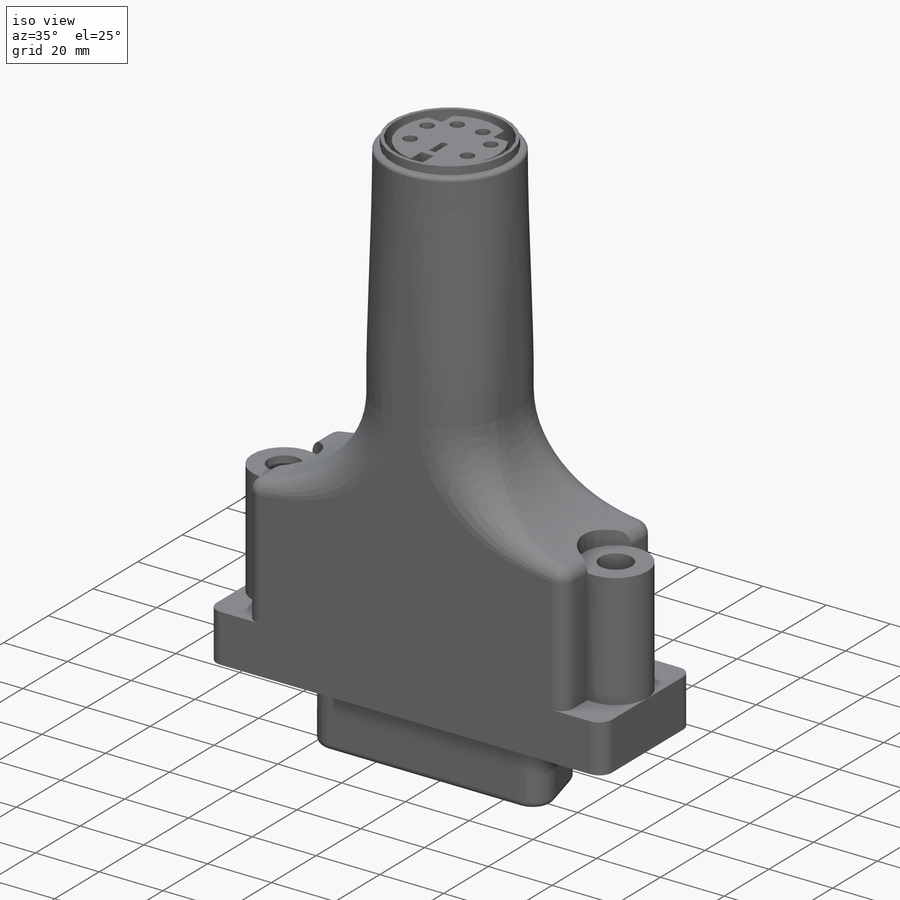
[diagram: iso view]
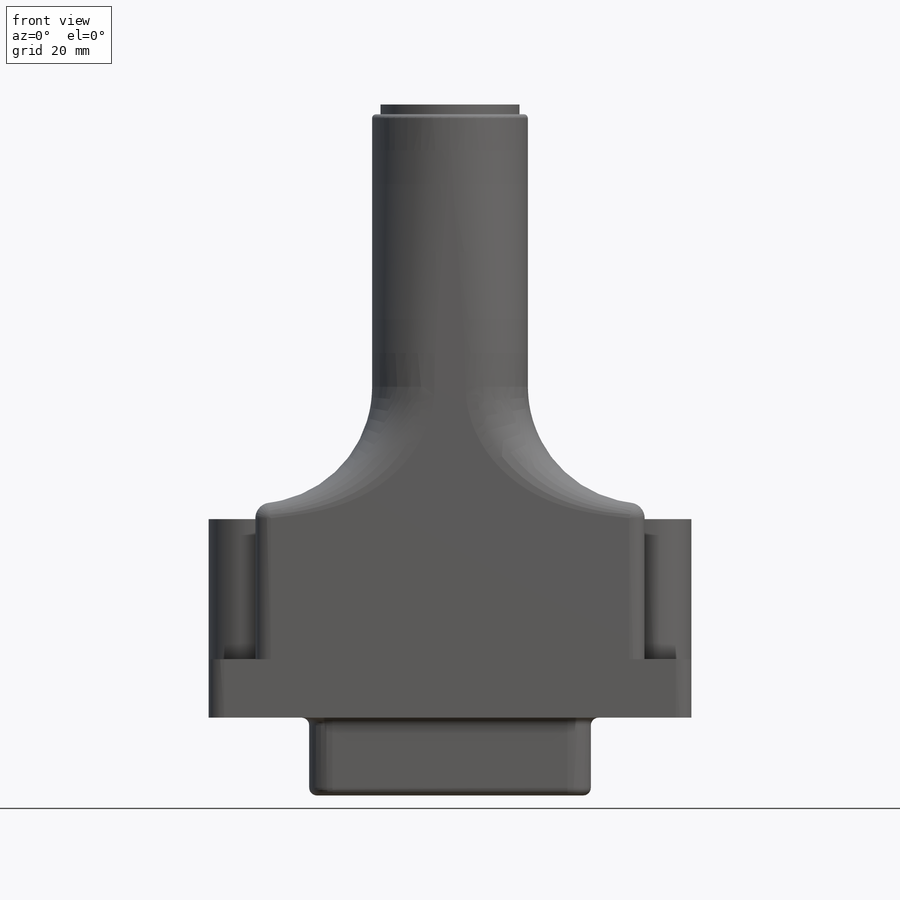
[diagram: front view]
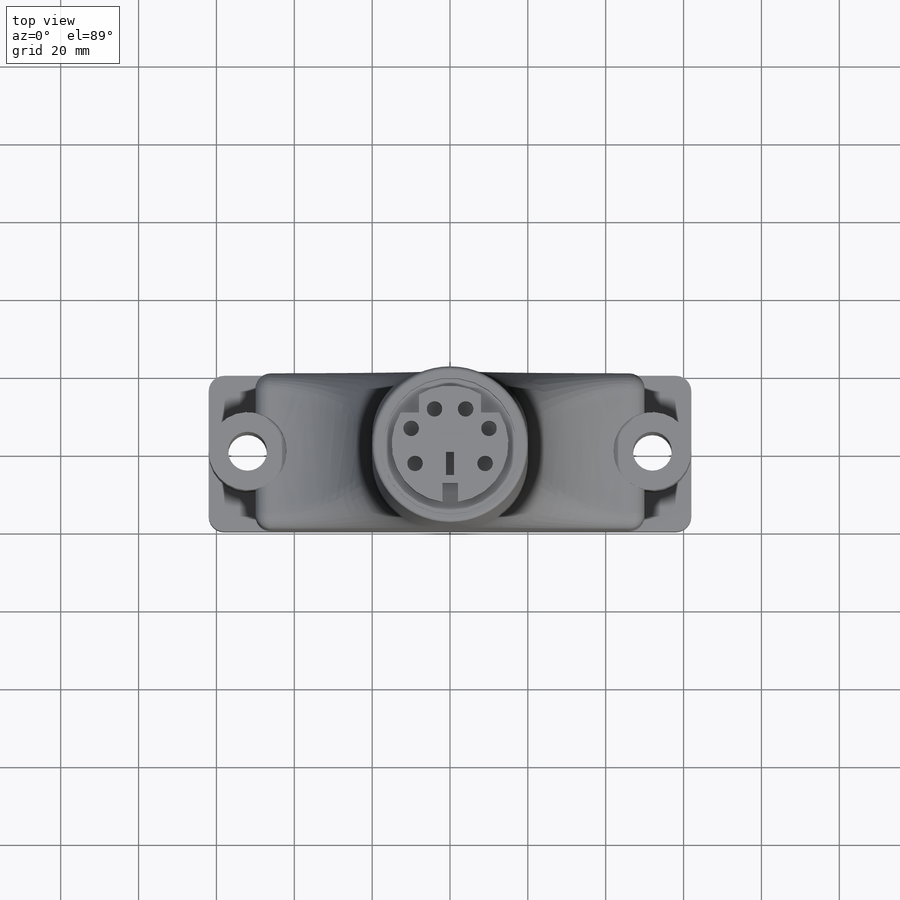
[diagram: top view]
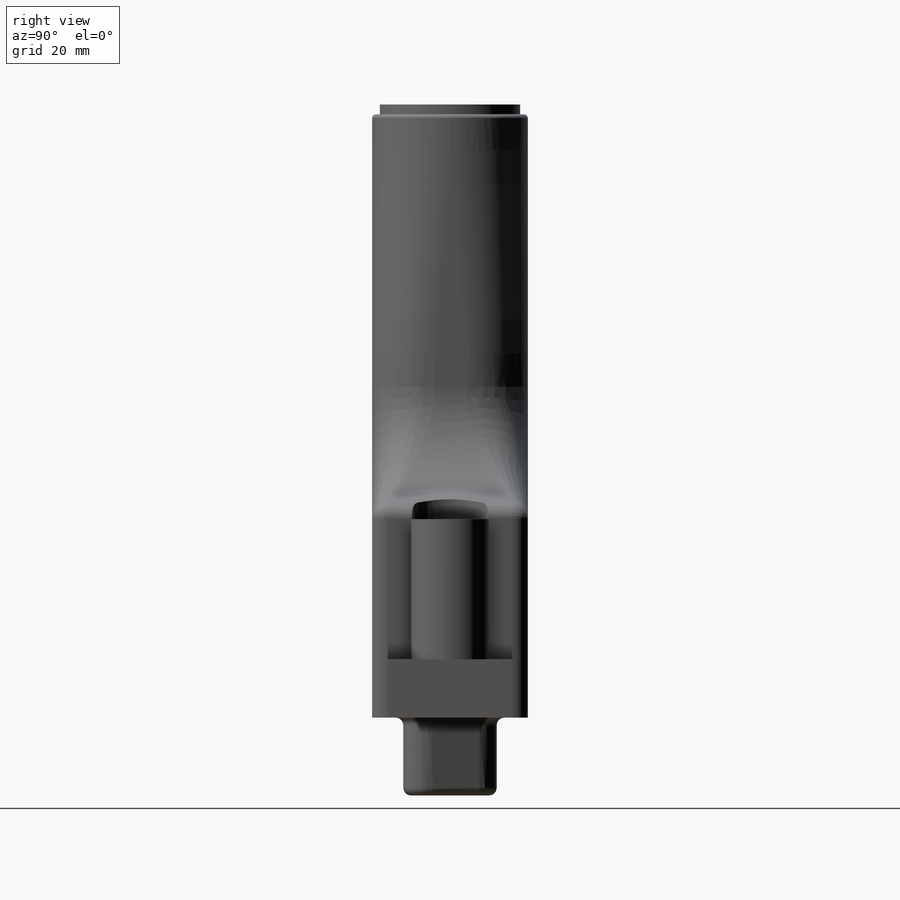
[diagram: right view]
SOLIDWORKS PART (.sldprt)
format: sldprt  version: not decoded by parser v0  size: 657,920 bytes
history: native  units: mm
features: sketch x11, extrude x9, cut_extrude x6, fillet x2, material x1, mirror x1 (+16 scaffold rows collapsed)
feature tree (46):
  scaffold x16  (default folders/planes/origin — collapsed)
  material  "Material <sin especificar>"
  sketch  "Croquis1"  dims[D1=20.0mm D2=50.0mm D3=62.0mm D4=15.0mm D5=40.0mm D6=100.0mm]
  extrude  "Saliente-Extruir1"  Depth=20mm
  fillet  "Redondeo1"  Radius=30mm
  extrude  "Redondeo2"  Depth=4mm
  fillet  "RedondeoVar4"  Radius=20mm
  extrude  "Redondeo3"  Depth=1mm
  sketch  "Croquis2"  dims[D1=36.0mm]
  extrude  "Saliente-Extruir2"  Depth=2.5mm
  sketch  "Croquis3"  dims[D1=1.0mm]
  cut_extrude  "Cortar-Extruir1"  Depth=10mm
  sketch  "Croquis4"  dims[D1=2.0mm]
  extrude  "Saliente-Extruir3"  Depth=9mm
  sketch  "Croquis5"  dims[c1.D4=4.0mm c1.D5=4.0mm c1.D8=4.0mm c1.D9=4.0mm c1.D1=6.0mm c1.D2=2.0mm c1.D3=2.0mm c2.D4=~3.938906mm c2.D1=2.0mm c2.D2=6.0mm c2.D3=2.0mm c3.D1=2.0mm c3.D2=2.0mm c3.D3=6.0mm c3.D5=4.0mm c3.D6=10.0mm c3.D7=9.0mm c3.D8=9.0mm c3.D9=4.0mm c3.D10=5.0mm]
  cut_extrude  "Cortar-Extruir2"  Depth=12mm
  sketch  "Croquis6"  dims[c1.D1=~12.281349mm c1.D2=8.0mm c1.D3=8.0mm c1.D4=~7.718651mm c2.D1=8.0mm c2.D4=10.0mm c2.D5=4.0mm]
  cut_extrude  "Cortar-Extruir3"  [1 undecoded]
  sketch  "Croquis7"  dims[D1=20.0mm]
  extrude  "Saliente-Extruir4"  Depth=36mm
  sketch  "Croquis9"
  cut_extrude  "Cortar-Extruir4"  [1 undecoded]
  sketch  "Croquis10"  dims[D1=10.0mm]
  cut_extrude  "Cortar-Extruir5"  [1 undecoded]
  mirror  "Simetría6"
  sketch  "Croquis11"  dims[c1.D1=~63.024763mm c2.D1=~66.630887deg c2.D2=75.0mm c2.D3=24.0mm c3.D1=~39.700638mm c4.D1=105.0deg c4.D2=76.0mm c4.D4=8.0mm]
  extrude  "Saliente-Extruir5"  Depth=20mm
  extrude  "Redondeo4"  Depth=6mm
  extrude  "Redondeo5"  Depth=2mm
  sketch  "Croquis12"  dims[c1.D1=6.0mm c1.D2=12.0mm c1.D3=12.0mm c1.D4=12.0mm c1.D5=12.0mm c1.D6=6.0mm c1.D7=8.0mm c1.D8=12.0mm c1.D9=12.0mm c1.D10=12.0mm c1.D11=4.0mm c2.D5=12.0mm]
  cut_extrude  "Cortar-Extruir6"  Depth=30mm
decode coverage: 24 of 29 modeling features carry decoded parameters
note: ~ marks probable driven/reference dimensions
note: 3 parameter values undecoded
summary: no parameter record found for 3 features
note: suppression state not decoded; provenance and decode notes live in map.json
